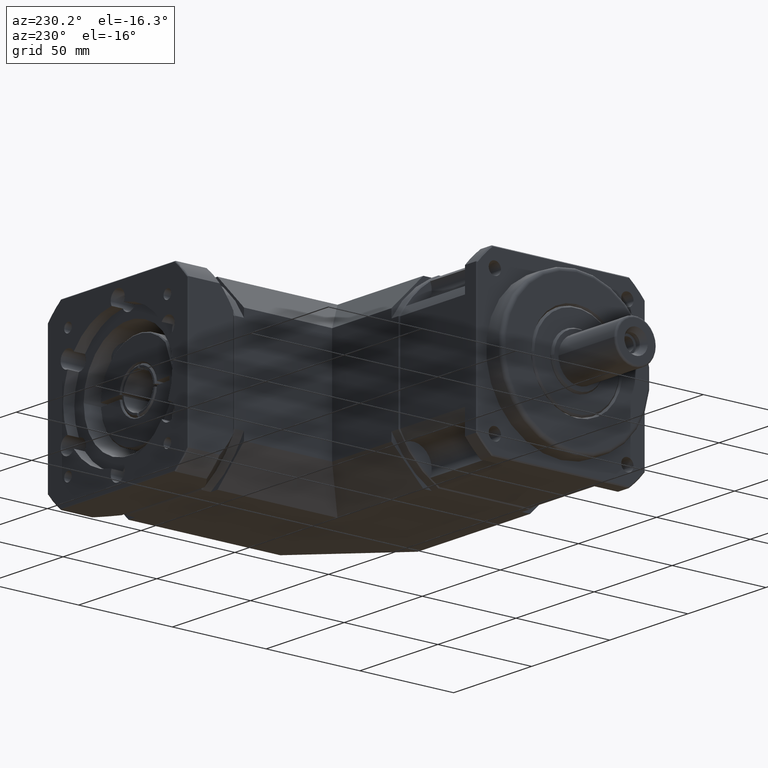
[diagram: clean part render]
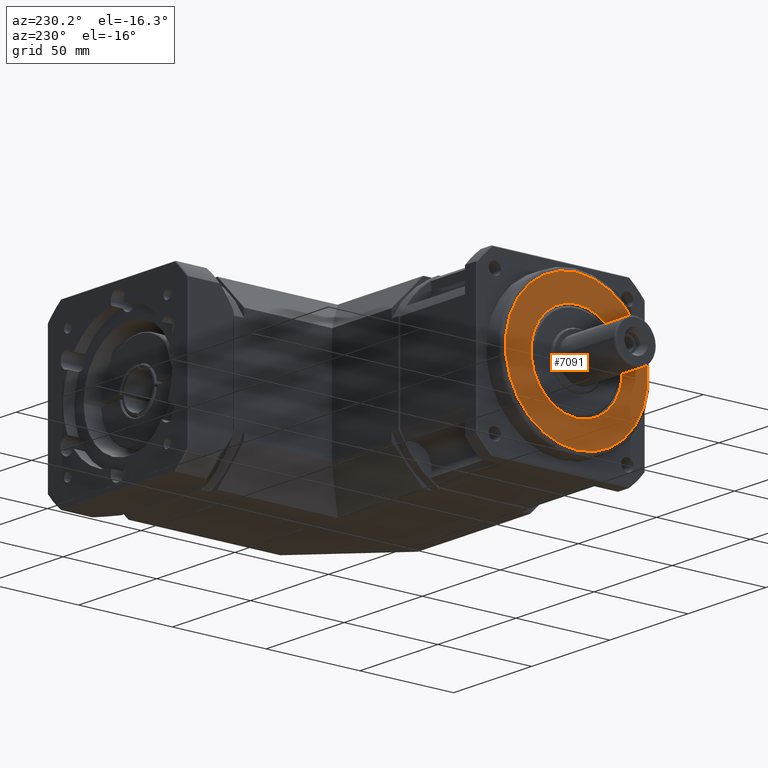
[diagram: same view with one face highlighted and labeled with its STEP entity id]
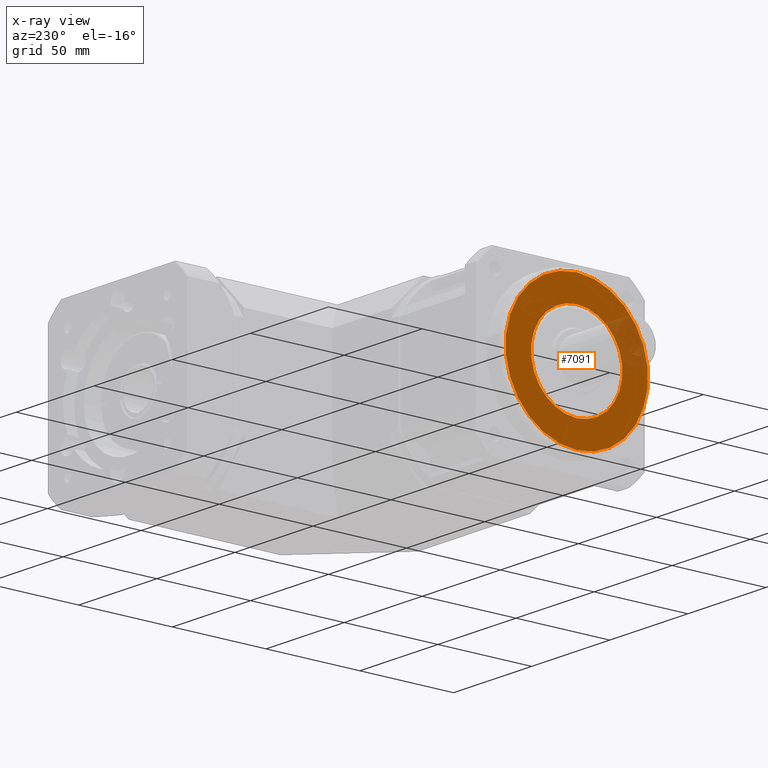
[diagram: x-ray of the same camera — body ghosted, the highlighted face saturated]
A machine part, auxiliary view. The second image highlights one B-rep face of the part: STEP entity #7091.
The next image is the same camera in x-ray: the body ghosted, the highlighted face saturated — about 12% of this face is hidden behind the body in this view.
In plain terms, the highlighted planar face has unit normal (1, -0, -0).
Its self-contained STEP definition (entity closure, byte-faithful):
#1296=FACE_BOUND('',#2193,.T.);
#1619=FACE_OUTER_BOUND('',#2192,.T.);
#2192=EDGE_LOOP('',(#5314));
#2193=EDGE_LOOP('',(#5315));
#2734=CIRCLE('',#7762,38.);
#2746=CIRCLE('',#7803,24.3660254037844);
#3208=VERTEX_POINT('',#11551);
#3229=VERTEX_POINT('',#11698);
#3950=EDGE_CURVE('',#3208,#3208,#2734,.T.);
#3999=EDGE_CURVE('',#3229,#3229,#2746,.T.);
#5314=ORIENTED_EDGE('',*,*,#3950,.F.);
#5315=ORIENTED_EDGE('',*,*,#3999,.F.);
#6379=PLANE('',#7802);
#7091=ADVANCED_FACE('',(#1619,#1296),#6379,.F.);
#7762=AXIS2_PLACEMENT_3D('',#11552,#9155,#9156);
#7802=AXIS2_PLACEMENT_3D('',#11697,#9256,#9257);
#7803=AXIS2_PLACEMENT_3D('',#11699,#9258,#9259);
#9155=DIRECTION('center_axis',(1.,-1.23658678782831E-15,-5.37870520386649E-15));
#9156=DIRECTION('ref_axis',(-5.37870520386649E-15,1.54702775112918E-15,
-1.));
#9256=DIRECTION('center_axis',(1.,-1.23658678782831E-15,-5.37870520386649E-15));
#9257=DIRECTION('ref_axis',(-5.6843418860808E-15,1.4210854715202E-15,-1.));
#9258=DIRECTION('center_axis',(-1.,1.23658678782831E-15,5.37870520386649E-15));
#9259=DIRECTION('ref_axis',(-5.37870520386649E-15,1.54702775112918E-15,
-1.));
#11551=CARTESIAN_POINT('',(-72.9245010391755,111.691471100404,41.5061015796993));
#11552=CARTESIAN_POINT('Origin',(-72.9245010391757,111.691471100404,3.50610157969926));
#11697=CARTESIAN_POINT('Origin',(-72.9245010391757,111.691471100404,3.50610157969925));
#11698=CARTESIAN_POINT('',(-72.9245010391756,111.691471100404,27.8721269834837));
#11699=CARTESIAN_POINT('Origin',(-72.9245010391757,111.691471100404,3.50610157969926));